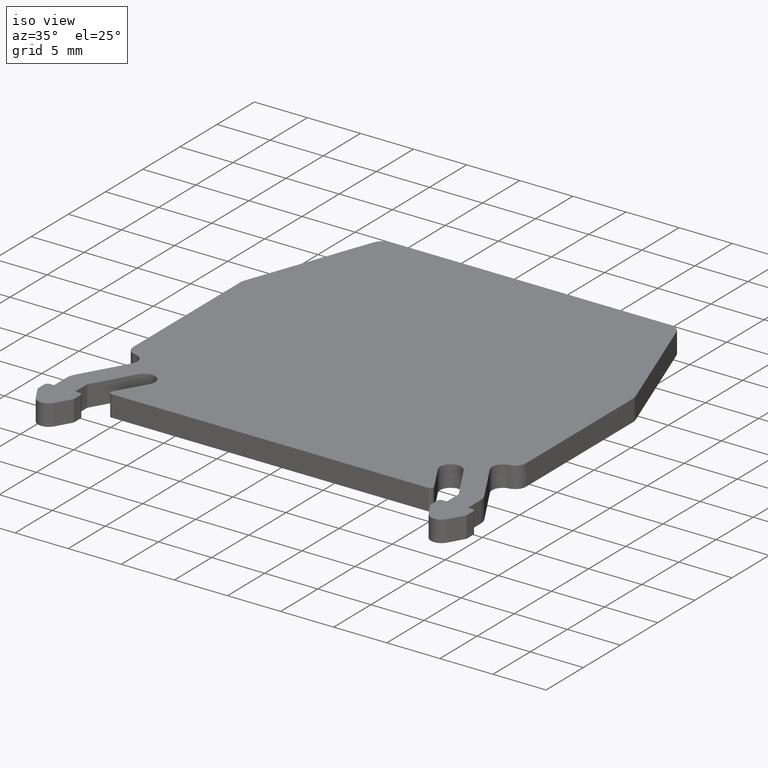
[diagram: clean part render]
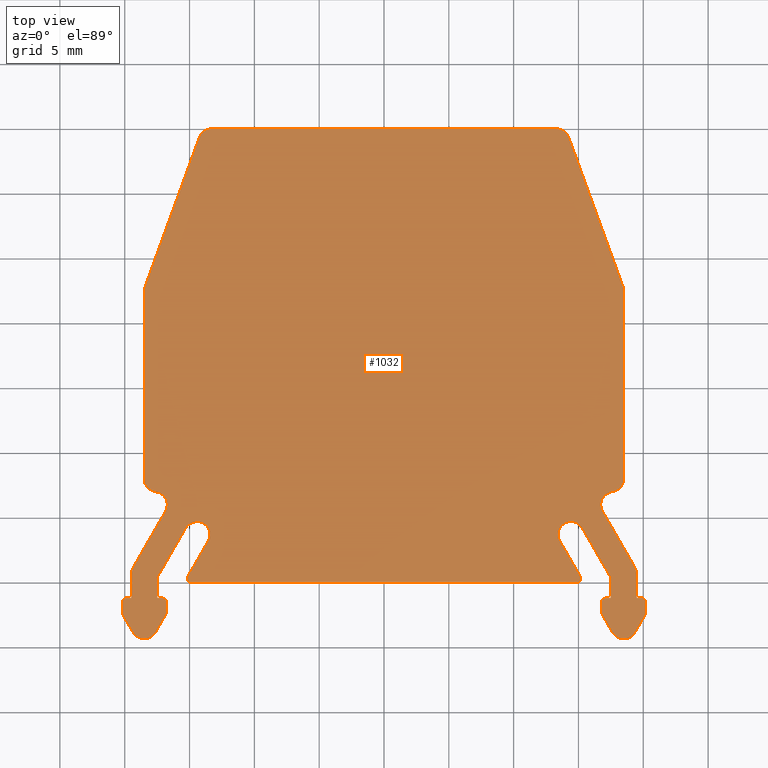
[diagram: tour spotlight — one face highlighted and labeled with its STEP entity id]
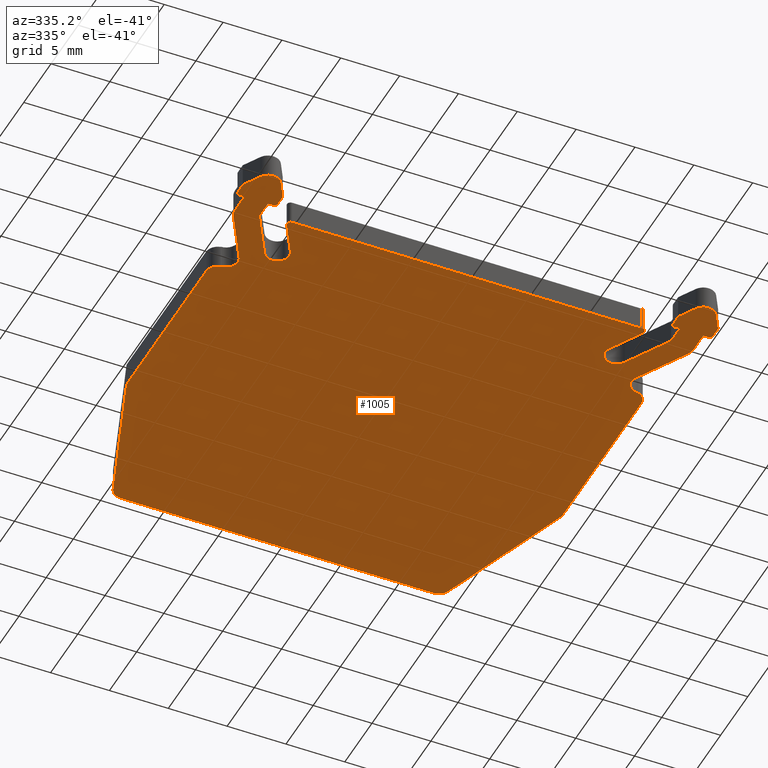
[diagram: tour spotlight — one face highlighted and labeled with its STEP entity id]
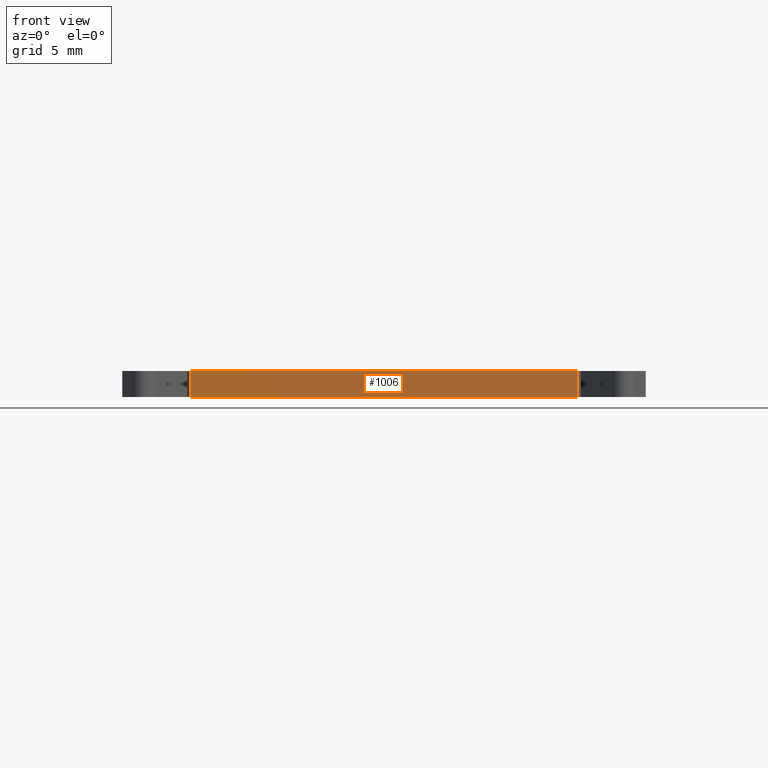
[diagram: tour spotlight — one face highlighted and labeled with its STEP entity id]
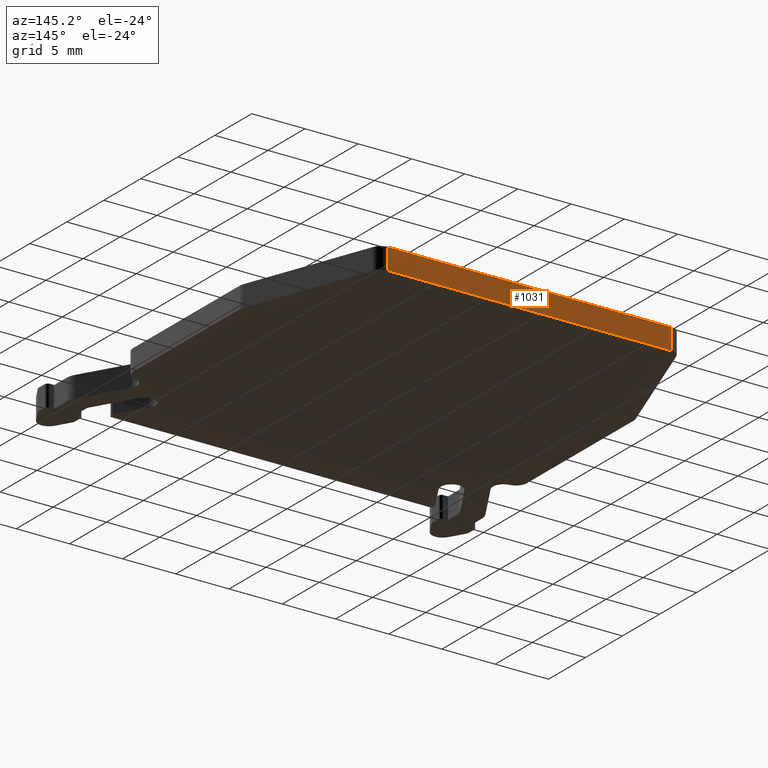
[diagram: tour spotlight — one face highlighted and labeled with its STEP entity id]
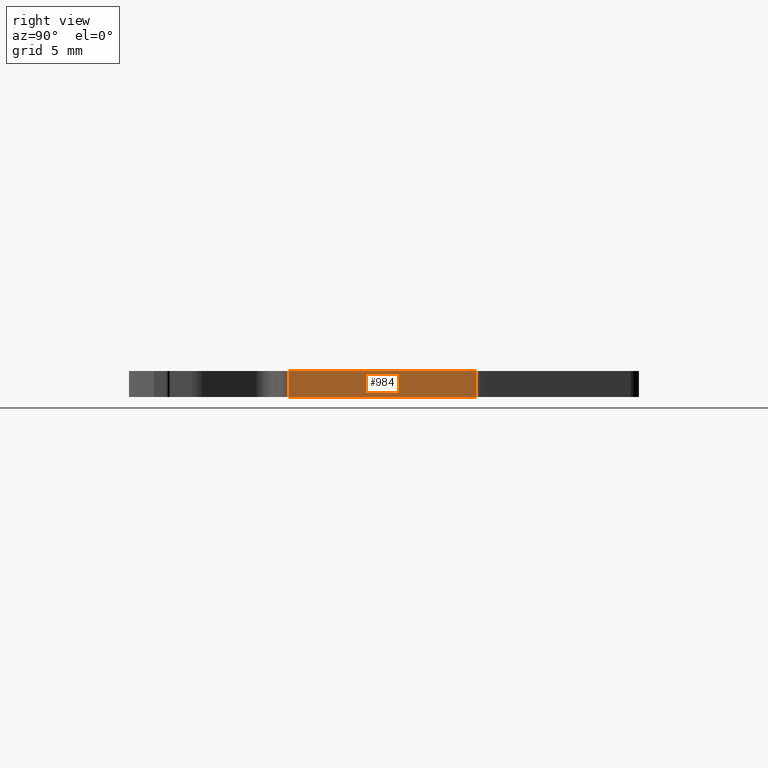
[diagram: tour spotlight — one face highlighted and labeled with its STEP entity id]
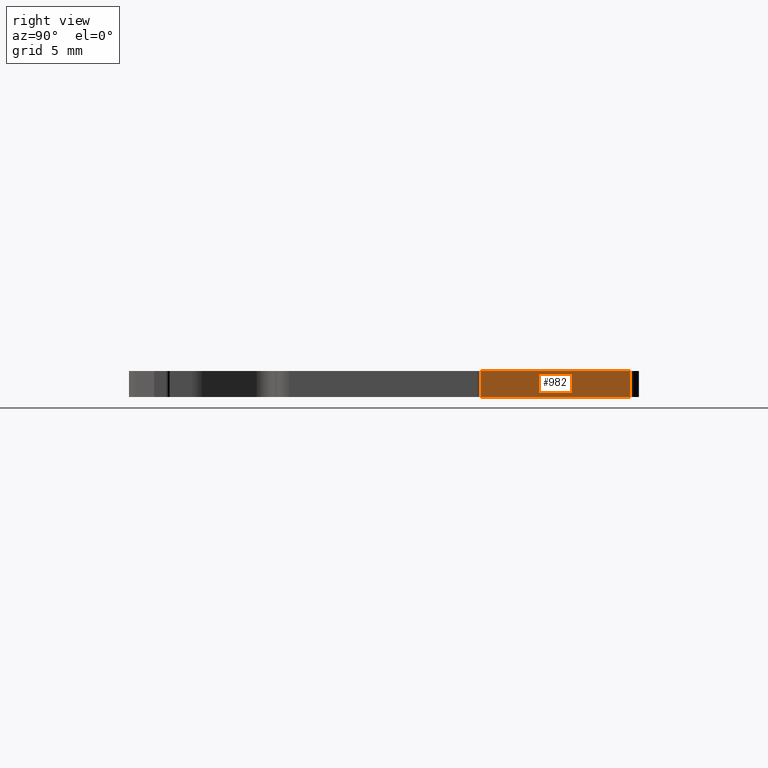
[diagram: tour spotlight — one face highlighted and labeled with its STEP entity id]
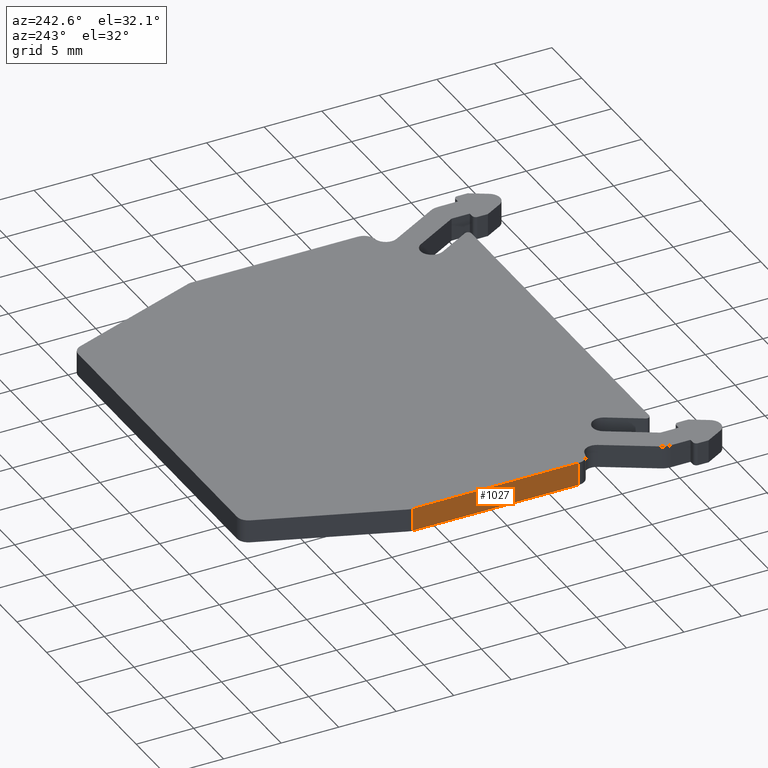
[diagram: tour spotlight — one face highlighted and labeled with its STEP entity id]
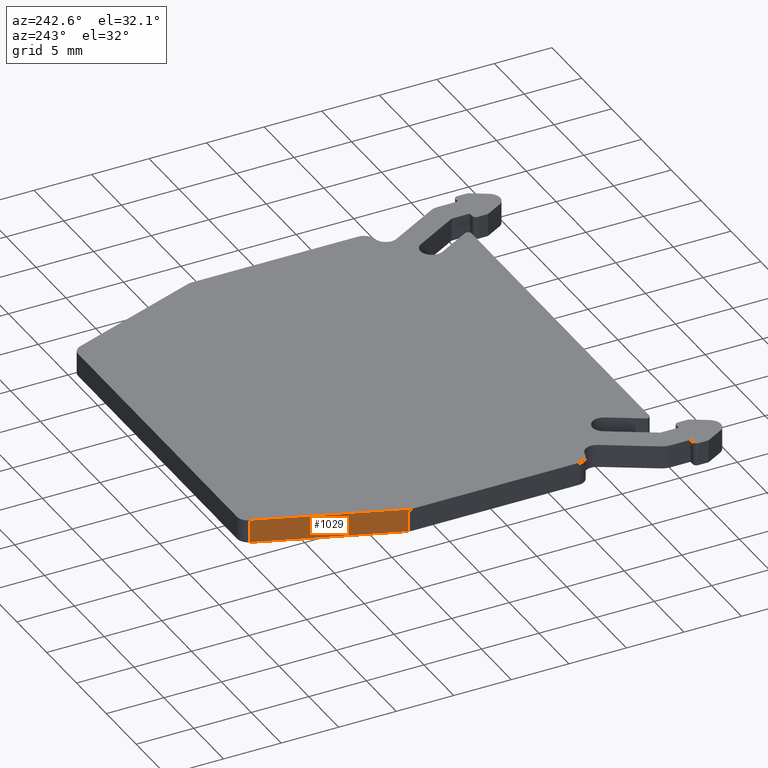
[diagram: tour spotlight — one face highlighted and labeled with its STEP entity id]
A machine part: a face-by-face anatomy tour. The part has 52 B-rep faces; the first image is the clean iso view, then the 8 largest visible faces are spotlighted one at a time (largest first), each with its STEP entity span.

Face 1 — top view, entity #1032. In plain terms, the highlighted planar face has unit normal (0, 0, 1).
Definition (entity closure, byte-faithful):
#46=PLANE('',#1126);
#98=FACE_OUTER_BOUND('',#150,.T.);
#150=EDGE_LOOP('',(#911,#912,#913,#914,#915,#916,#917,#918,#919,#920,#921,
#922,#923,#924,#925,#926,#927,#928,#929,#930,#931,#932,#933,#934,#935,#936,
#937,#938,#939,#940,#941,#942,#943,#944,#945,#946,#947,#948,#949,#950,#951,
#952,#953,#954,#955,#956,#957,#958,#959,#960));
#153=LINE('',#1435,#263);
#157=LINE('',#1447,#267);
#161=LINE('',#1459,#271);
#165=LINE('',#1471,#275);
#169=LINE('',#1483,#279);
#172=LINE('',#1489,#282);
#176=LINE('',#1501,#286);
#179=LINE('',#1507,#289);
#183=LINE('',#1519,#293);
#186=LINE('',#1525,#296);
#190=LINE('',#1537,#300);
#193=LINE('',#1543,#303);
#196=LINE('',#1549,#306);
#200=LINE('',#1561,#310);
#220=LINE('',#1625,#330);
#223=LINE('',#1633,#333);
#226=LINE('',#1641,#336);
#228=LINE('',#1645,#338);
#230=LINE('',#1649,#340);
#233=LINE('',#1657,#343);
#235=LINE('',#1661,#345);
#238=LINE('',#1669,#348);
#240=LINE('',#1673,#350);
#243=LINE('',#1681,#353);
#245=LINE('',#1685,#355);
#248=LINE('',#1693,#358);
#251=LINE('',#1701,#361);
#254=LINE('',#1709,#364);
#257=LINE('',#1717,#367);
#260=LINE('',#1724,#370);
#263=VECTOR('',#1139,12.2805852818158);
#267=VECTOR('',#1151,14.4600246317457);
#271=VECTOR('',#1163,0.21557713659401);
#275=VECTOR('',#1175,4.88897274573418);
#279=VECTOR('',#1187,1.71602540378444);
#282=VECTOR('',#1192,0.400000000000003);
#286=VECTOR('',#1204,0.905513627132916);
#289=VECTOR('',#1209,1.66794919243111);
#293=VECTOR('',#1221,1.66794919243111);
#296=VECTOR('',#1226,0.905513627132916);
#300=VECTOR('',#1238,0.400000000000003);
#303=VECTOR('',#1243,1.58205080756888);
#306=VECTOR('',#1248,4.40858798800484);
#310=VECTOR('',#1260,3.17542648054294);
#330=VECTOR('',#1310,29.7731216351297);
#333=VECTOR('',#1319,3.17542648054294);
#336=VECTOR('',#1328,4.40858798800484);
#338=VECTOR('',#1332,1.58205080756888);
#340=VECTOR('',#1336,0.400000000000003);
#343=VECTOR('',#1345,0.905513627132916);
#345=VECTOR('',#1349,1.66794919243111);
#348=VECTOR('',#1358,1.66794919243111);
#350=VECTOR('',#1362,0.905513627132916);
#353=VECTOR('',#1371,0.400000000000003);
#355=VECTOR('',#1375,1.71602540378444);
#358=VECTOR('',#1384,4.88897274573418);
#361=VECTOR('',#1393,0.21557713659401);
#364=VECTOR('',#1402,14.4600246317457);
#367=VECTOR('',#1411,12.2805852818158);
#370=VECTOR('',#1420,26.5995849235806);
#371=CIRCLE('',#1036,1.);
#373=CIRCLE('',#1040,1.);
#375=CIRCLE('',#1044,1.);
#377=CIRCLE('',#1048,1.);
#379=CIRCLE('',#1052,1.50000000000002);
#381=CIRCLE('',#1057,0.299999999999999);
#383=CIRCLE('',#1062,0.999999999999998);
#385=CIRCLE('',#1067,0.3);
#387=CIRCLE('',#1073,1.);
#389=CIRCLE('',#1077,0.300000000000002);
#401=CIRCLE('',#1092,0.300000000000002);
#402=CIRCLE('',#1095,1.);
#403=CIRCLE('',#1100,0.3);
#404=CIRCLE('',#1104,0.999999999999999);
#405=CIRCLE('',#1108,0.299999999999999);
#406=CIRCLE('',#1112,1.50000000000002);
#407=CIRCLE('',#1115,1.);
#408=CIRCLE('',#1118,1.);
#409=CIRCLE('',#1121,1.);
#410=CIRCLE('',#1124,1.);
#411=VERTEX_POINT('',#1425);
#412=VERTEX_POINT('',#1426);
#415=VERTEX_POINT('',#1434);
#417=VERTEX_POINT('',#1440);
#419=VERTEX_POINT('',#1446);
#421=VERTEX_POINT('',#1452);
#423=VERTEX_POINT('',#1458);
#425=VERTEX_POINT('',#1464);
#427=VERTEX_POINT('',#1470);
#429=VERTEX_POINT('',#1476);
#431=VERTEX_POINT('',#1482);
#433=VERTEX_POINT('',#1488);
#435=VERTEX_POINT('',#1494);
#437=VERTEX_POINT('',#1500);
#439=VERTEX_POINT('',#1506);
#441=VERTEX_POINT('',#1512);
#443=VERTEX_POINT('',#1518);
#445=VERTEX_POINT('',#1524);
#447=VERTEX_POINT('',#1530);
#449=VERTEX_POINT('',#1536);
#451=VERTEX_POINT('',#1542);
#453=VERTEX_POINT('',#1548);
#455=VERTEX_POINT('',#1554);
#457=VERTEX_POINT('',#1560);
#459=VERTEX_POINT('',#1566);
#486=VERTEX_POINT('',#1624);
#487=VERTEX_POINT('',#1628);
#488=VERTEX_POINT('',#1632);
#489=VERTEX_POINT('',#1636);
#490=VERTEX_POINT('',#1640);
#491=VERTEX_POINT('',#1644);
#492=VERTEX_POINT('',#1648);
#493=VERTEX_POINT('',#1652);
#494=VERTEX_POINT('',#1656);
#495=VERTEX_POINT('',#1660);
#496=VERTEX_POINT('',#1664);
#497=VERTEX_POINT('',#1668);
#498=VERTEX_POINT('',#1672);
#499=VERTEX_POINT('',#1676);
#500=VERTEX_POINT('',#1680);
#501=VERTEX_POINT('',#1684);
#502=VERTEX_POINT('',#1688);
#503=VERTEX_POINT('',#1692);
#504=VERTEX_POINT('',#1696);
#505=VERTEX_POINT('',#1700);
#506=VERTEX_POINT('',#1704);
#507=VERTEX_POINT('',#1708);
#508=VERTEX_POINT('',#1712);
#509=VERTEX_POINT('',#1716);
#510=VERTEX_POINT('',#1720);
#511=EDGE_CURVE('',#411,#412,#371,.T.);
#515=EDGE_CURVE('',#412,#415,#153,.T.);
#518=EDGE_CURVE('',#415,#417,#373,.T.);
#521=EDGE_CURVE('',#417,#419,#157,.T.);
#524=EDGE_CURVE('',#419,#421,#375,.T.);
#527=EDGE_CURVE('',#421,#423,#161,.T.);
#530=EDGE_CURVE('',#423,#425,#377,.T.);
#533=EDGE_CURVE('',#425,#427,#165,.T.);
#536=EDGE_CURVE('',#427,#429,#379,.T.);
#539=EDGE_CURVE('',#429,#431,#169,.T.);
#542=EDGE_CURVE('',#431,#433,#172,.T.);
#545=EDGE_CURVE('',#433,#435,#381,.T.);
#548=EDGE_CURVE('',#435,#437,#176,.T.);
#551=EDGE_CURVE('',#437,#439,#179,.T.);
#554=EDGE_CURVE('',#439,#441,#383,.T.);
#557=EDGE_CURVE('',#441,#443,#183,.T.);
#560=EDGE_CURVE('',#443,#445,#186,.T.);
#563=EDGE_CURVE('',#445,#447,#385,.T.);
#566=EDGE_CURVE('',#447,#449,#190,.T.);
#569=EDGE_CURVE('',#449,#451,#193,.T.);
#572=EDGE_CURVE('',#451,#453,#196,.T.);
#575=EDGE_CURVE('',#453,#455,#387,.T.);
#578=EDGE_CURVE('',#455,#457,#200,.T.);
#581=EDGE_CURVE('',#457,#459,#389,.T.);
#610=EDGE_CURVE('',#459,#486,#220,.T.);
#612=EDGE_CURVE('',#486,#487,#401,.T.);
#614=EDGE_CURVE('',#487,#488,#223,.T.);
#616=EDGE_CURVE('',#488,#489,#402,.T.);
#618=EDGE_CURVE('',#489,#490,#226,.T.);
#620=EDGE_CURVE('',#490,#491,#228,.T.);
#622=EDGE_CURVE('',#491,#492,#230,.T.);
#624=EDGE_CURVE('',#492,#493,#403,.T.);
#626=EDGE_CURVE('',#493,#494,#233,.T.);
#628=EDGE_CURVE('',#494,#495,#235,.T.);
#630=EDGE_CURVE('',#495,#496,#404,.T.);
#632=EDGE_CURVE('',#496,#497,#238,.T.);
#634=EDGE_CURVE('',#497,#498,#240,.T.);
#636=EDGE_CURVE('',#498,#499,#405,.T.);
#638=EDGE_CURVE('',#499,#500,#243,.T.);
#640=EDGE_CURVE('',#500,#501,#245,.T.);
#642=EDGE_CURVE('',#501,#502,#406,.T.);
#644=EDGE_CURVE('',#502,#503,#248,.T.);
#646=EDGE_CURVE('',#503,#504,#407,.T.);
#648=EDGE_CURVE('',#504,#505,#251,.T.);
#650=EDGE_CURVE('',#505,#506,#408,.T.);
#652=EDGE_CURVE('',#506,#507,#254,.T.);
#654=EDGE_CURVE('',#507,#508,#409,.T.);
#656=EDGE_CURVE('',#508,#509,#257,.T.);
#658=EDGE_CURVE('',#509,#510,#410,.T.);
#660=EDGE_CURVE('',#510,#411,#260,.T.);
#911=ORIENTED_EDGE('',*,*,#660,.F.);
#912=ORIENTED_EDGE('',*,*,#658,.F.);
#913=ORIENTED_EDGE('',*,*,#656,.F.);
#914=ORIENTED_EDGE('',*,*,#654,.F.);
#915=ORIENTED_EDGE('',*,*,#652,.F.);
#916=ORIENTED_EDGE('',*,*,#650,.F.);
#917=ORIENTED_EDGE('',*,*,#648,.F.);
#918=ORIENTED_EDGE('',*,*,#646,.F.);
#919=ORIENTED_EDGE('',*,*,#644,.F.);
#920=ORIENTED_EDGE('',*,*,#642,.F.);
#921=ORIENTED_EDGE('',*,*,#640,.F.);
#922=ORIENTED_EDGE('',*,*,#638,.F.);
#923=ORIENTED_EDGE('',*,*,#636,.F.);
#924=ORIENTED_EDGE('',*,*,#634,.F.);
#925=ORIENTED_EDGE('',*,*,#632,.F.);
#926=ORIENTED_EDGE('',*,*,#630,.F.);
#927=ORIENTED_EDGE('',*,*,#628,.F.);
#928=ORIENTED_EDGE('',*,*,#626,.F.);
#929=ORIENTED_EDGE('',*,*,#624,.F.);
#930=ORIENTED_EDGE('',*,*,#622,.F.);
#931=ORIENTED_EDGE('',*,*,#620,.F.);
#932=ORIENTED_EDGE('',*,*,#618,.F.);
#933=ORIENTED_EDGE('',*,*,#616,.F.);
#934=ORIENTED_EDGE('',*,*,#614,.F.);
#935=ORIENTED_EDGE('',*,*,#612,.F.);
#936=ORIENTED_EDGE('',*,*,#610,.F.);
#937=ORIENTED_EDGE('',*,*,#581,.F.);
#938=ORIENTED_EDGE('',*,*,#578,.F.);
#939=ORIENTED_EDGE('',*,*,#575,.F.);
#940=ORIENTED_EDGE('',*,*,#572,.F.);
#941=ORIENTED_EDGE('',*,*,#569,.F.);
#942=ORIENTED_EDGE('',*,*,#566,.F.);
#943=ORIENTED_EDGE('',*,*,#563,.F.);
#944=ORIENTED_EDGE('',*,*,#560,.F.);
#945=ORIENTED_EDGE('',*,*,#557,.F.);
#946=ORIENTED_EDGE('',*,*,#554,.F.);
#947=ORIENTED_EDGE('',*,*,#551,.F.);
#948=ORIENTED_EDGE('',*,*,#548,.F.);
#949=ORIENTED_EDGE('',*,*,#545,.F.);
#950=ORIENTED_EDGE('',*,*,#542,.F.);
#951=ORIENTED_EDGE('',*,*,#539,.F.);
#952=ORIENTED_EDGE('',*,*,#536,.F.);
#953=ORIENTED_EDGE('',*,*,#533,.F.);
#954=ORIENTED_EDGE('',*,*,#530,.F.);
#955=ORIENTED_EDGE('',*,*,#527,.F.);
#956=ORIENTED_EDGE('',*,*,#524,.F.);
#957=ORIENTED_EDGE('',*,*,#521,.F.);
#958=ORIENTED_EDGE('',*,*,#518,.F.);
#959=ORIENTED_EDGE('',*,*,#515,.F.);
#960=ORIENTED_EDGE('',*,*,#511,.F.);
#1032=ADVANCED_FACE('',(#98),#46,.T.);
#1036=AXIS2_PLACEMENT_3D('',#1427,#1131,#1132);
#1040=AXIS2_PLACEMENT_3D('',#1441,#1144,#1145);
#1044=AXIS2_PLACEMENT_3D('',#1453,#1156,#1157);
#1048=AXIS2_PLACEMENT_3D('',#1465,#1168,#1169);
#1052=AXIS2_PLACEMENT_3D('',#1477,#1180,#1181);
#1057=AXIS2_PLACEMENT_3D('',#1495,#1197,#1198);
#1062=AXIS2_PLACEMENT_3D('',#1513,#1214,#1215);
#1067=AXIS2_PLACEMENT_3D('',#1531,#1231,#1232);
#1073=AXIS2_PLACEMENT_3D('',#1555,#1253,#1254);
#1077=AXIS2_PLACEMENT_3D('',#1567,#1265,#1266);
#1092=AXIS2_PLACEMENT_3D('',#1629,#1314,#1315);
#1095=AXIS2_PLACEMENT_3D('',#1637,#1323,#1324);
#1100=AXIS2_PLACEMENT_3D('',#1653,#1340,#1341);
#1104=AXIS2_PLACEMENT_3D('',#1665,#1353,#1354);
#1108=AXIS2_PLACEMENT_3D('',#1677,#1366,#1367);
#1112=AXIS2_PLACEMENT_3D('',#1689,#1379,#1380);
#1115=AXIS2_PLACEMENT_3D('',#1697,#1388,#1389);
#1118=AXIS2_PLACEMENT_3D('',#1705,#1397,#1398);
#1121=AXIS2_PLACEMENT_3D('',#1713,#1406,#1407);
#1124=AXIS2_PLACEMENT_3D('',#1721,#1415,#1416);
#1126=AXIS2_PLACEMENT_3D('',#1725,#1421,#1422);
#1131=DIRECTION('center_axis',(0.,0.,-1.));
#1132=DIRECTION('ref_axis',(0.939692620785909,0.342020143325668,0.));
#1139=DIRECTION('',(0.342020143325668,-0.939692620785909,0.));
#1144=DIRECTION('center_axis',(0.,0.,-1.));
#1145=DIRECTION('ref_axis',(1.,0.,0.));
#1151=DIRECTION('',(0.,-1.,0.));
#1156=DIRECTION('center_axis',(0.,0.,-1.));
#1157=DIRECTION('ref_axis',(0.,-1.,0.));
#1163=DIRECTION('',(1.,5.15000357721612E-15,0.));
#1168=DIRECTION('center_axis',(0.,0.,1.));
#1169=DIRECTION('ref_axis',(0.,-1.,0.));
#1175=DIRECTION('',(0.499999999999999,-0.866025403784439,0.));
#1180=DIRECTION('center_axis',(0.,0.,-1.));
#1181=DIRECTION('ref_axis',(1.,-4.16333634234434E-16,0.));
#1187=DIRECTION('',(0.,-1.,0.));
#1192=DIRECTION('',(1.,-3.46944695195359E-16,0.));
#1197=DIRECTION('center_axis',(0.,0.,-1.));
#1198=DIRECTION('ref_axis',(1.,-9.25185853854283E-16,0.));
#1204=DIRECTION('',(-4.90427969876236E-15,-1.,0.));
#1209=DIRECTION('',(-0.500000000000004,-0.866025403784436,0.));
#1214=DIRECTION('center_axis',(0.,0.,-1.));
#1215=DIRECTION('ref_axis',(-0.866025403784442,-0.499999999999994,0.));
#1221=DIRECTION('',(-0.500000000000004,0.866025403784436,0.));
#1226=DIRECTION('',(-4.90427969876236E-15,1.,0.));
#1231=DIRECTION('center_axis',(0.,0.,-1.));
#1232=DIRECTION('ref_axis',(0.,1.,0.));
#1238=DIRECTION('',(1.,3.46944695195359E-16,0.));
#1243=DIRECTION('',(2.80704771127097E-15,1.,0.));
#1248=DIRECTION('',(-0.5,0.866025403784439,0.));
#1253=DIRECTION('center_axis',(0.,0.,1.));
#1254=DIRECTION('ref_axis',(-0.866025403784439,-0.5,0.));
#1260=DIRECTION('',(0.499999999999998,-0.86602540378444,0.));
#1265=DIRECTION('center_axis',(0.,0.,-1.));
#1266=DIRECTION('ref_axis',(0.,-1.,0.));
#1310=DIRECTION('',(-1.,-7.22482894663346E-17,0.));
#1314=DIRECTION('center_axis',(0.,0.,-1.));
#1315=DIRECTION('ref_axis',(-0.866025403784438,0.500000000000001,0.));
#1319=DIRECTION('',(0.499999999999998,0.86602540378444,0.));
#1323=DIRECTION('center_axis',(0.,0.,1.));
#1324=DIRECTION('ref_axis',(-0.866025403784439,0.5,0.));
#1328=DIRECTION('',(-0.5,-0.866025403784439,0.));
#1332=DIRECTION('',(2.80704771127097E-15,-1.,0.));
#1336=DIRECTION('',(1.,-3.46944695195359E-16,0.));
#1340=DIRECTION('center_axis',(0.,0.,-1.));
#1341=DIRECTION('ref_axis',(1.,-9.25185853854283E-16,0.));
#1345=DIRECTION('',(-4.90427969876236E-15,-1.,0.));
#1349=DIRECTION('',(-0.500000000000004,-0.866025403784436,0.));
#1353=DIRECTION('center_axis',(0.,0.,-1.));
#1354=DIRECTION('ref_axis',(-0.866025403784441,-0.499999999999996,0.));
#1358=DIRECTION('',(-0.500000000000004,0.866025403784436,0.));
#1362=DIRECTION('',(-4.90427969876236E-15,1.,0.));
#1366=DIRECTION('center_axis',(0.,0.,-1.));
#1367=DIRECTION('ref_axis',(0.,1.,0.));
#1371=DIRECTION('',(1.,3.46944695195359E-16,0.));
#1375=DIRECTION('',(0.,1.,0.));
#1379=DIRECTION('center_axis',(0.,0.,-1.));
#1380=DIRECTION('ref_axis',(-0.866025403784439,0.5,0.));
#1384=DIRECTION('',(0.499999999999999,0.866025403784439,0.));
#1388=DIRECTION('center_axis',(0.,0.,1.));
#1389=DIRECTION('ref_axis',(-0.866025403784439,0.5,0.));
#1393=DIRECTION('',(1.,-5.15000357721612E-15,0.));
#1397=DIRECTION('center_axis',(0.,0.,-1.));
#1398=DIRECTION('ref_axis',(-1.,0.,0.));
#1402=DIRECTION('',(0.,1.,0.));
#1406=DIRECTION('center_axis',(0.,0.,-1.));
#1407=DIRECTION('ref_axis',(-0.939692620785908,0.342020143325669,0.));
#1411=DIRECTION('',(0.342020143325668,0.939692620785909,0.));
#1415=DIRECTION('center_axis',(0.,0.,-1.));
#1416=DIRECTION('ref_axis',(-2.22044604925031E-15,1.,0.));
#1420=DIRECTION('',(1.,0.,0.));
#1421=DIRECTION('center_axis',(0.,0.,1.));
#1422=DIRECTION('ref_axis',(1.,0.,0.));
#1425=CARTESIAN_POINT('',(13.2997924617903,35.,1.));
#1426=CARTESIAN_POINT('',(14.2394850825762,34.3420201433257,1.));
#1427=CARTESIAN_POINT('Origin',(13.2997924617903,34.,1.));
#1434=CARTESIAN_POINT('',(18.4396926207859,22.8020447750714,1.));
#1435=CARTESIAN_POINT('',(18.4396926207859,22.8020447750714,1.));
#1440=CARTESIAN_POINT('',(18.5,22.4600246317457,1.));
#1441=CARTESIAN_POINT('Origin',(17.5,22.4600246317457,1.));
#1446=CARTESIAN_POINT('',(18.5,8.,1.));
#1447=CARTESIAN_POINT('',(18.5,8.,1.));
#1452=CARTESIAN_POINT('',(17.5,7.,1.));
#1453=CARTESIAN_POINT('Origin',(17.5,8.,1.));
#1458=CARTESIAN_POINT('',(17.715577136594,7.,1.));
#1459=CARTESIAN_POINT('',(17.715577136594,7.,1.));
#1464=CARTESIAN_POINT('',(16.8495517328096,5.5,1.));
#1465=CARTESIAN_POINT('Origin',(17.715577136594,6.,1.));
#1470=CARTESIAN_POINT('',(19.2940381056767,1.26602540378444,1.));
#1471=CARTESIAN_POINT('',(19.2940381056767,1.26602540378444,1.));
#1476=CARTESIAN_POINT('',(19.495,0.51602540378444,1.));
#1477=CARTESIAN_POINT('Origin',(17.995,0.51602540378444,1.));
#1482=CARTESIAN_POINT('',(19.495,-1.2,1.));
#1483=CARTESIAN_POINT('',(19.495,-1.2,1.));
#1488=CARTESIAN_POINT('',(19.895,-1.2,1.));
#1489=CARTESIAN_POINT('',(19.895,-1.2,1.));
#1494=CARTESIAN_POINT('',(20.195,-1.5,1.));
#1495=CARTESIAN_POINT('Origin',(19.895,-1.5,1.));
#1500=CARTESIAN_POINT('',(20.195,-2.40551362713292,1.));
#1501=CARTESIAN_POINT('',(20.195,-2.40551362713292,1.));
#1506=CARTESIAN_POINT('',(19.3610254037844,-3.85,1.));
#1507=CARTESIAN_POINT('',(19.3610254037844,-3.85,1.));
#1512=CARTESIAN_POINT('',(17.6289745962156,-3.85,1.));
#1513=CARTESIAN_POINT('Origin',(18.495,-3.35,1.));
#1518=CARTESIAN_POINT('',(16.795,-2.40551362713292,1.));
#1519=CARTESIAN_POINT('',(16.795,-2.40551362713292,1.));
#1524=CARTESIAN_POINT('',(16.795,-1.5,1.));
#1525=CARTESIAN_POINT('',(16.795,-1.5,1.));
#1530=CARTESIAN_POINT('',(17.095,-1.2,1.));
#1531=CARTESIAN_POINT('Origin',(17.095,-1.5,1.));
#1536=CARTESIAN_POINT('',(17.495,-1.2,1.));
#1537=CARTESIAN_POINT('',(17.495,-1.2,1.));
#1542=CARTESIAN_POINT('',(17.495,0.382050807568882,1.));
#1543=CARTESIAN_POINT('',(17.495,0.382050807568882,1.));
#1548=CARTESIAN_POINT('',(15.2907060059976,4.2,1.));
#1549=CARTESIAN_POINT('',(15.2907060059976,4.2,1.));
#1554=CARTESIAN_POINT('',(13.5586551984287,3.2,1.));
#1555=CARTESIAN_POINT('Origin',(14.4246806022131,3.7,1.));
#1560=CARTESIAN_POINT('',(15.1463684387002,0.449999999999999,1.));
#1561=CARTESIAN_POINT('',(15.1463684387002,0.449999999999999,1.));
#1566=CARTESIAN_POINT('',(14.8865608175648,-1.07552855510562E-15,1.));
#1567=CARTESIAN_POINT('Origin',(14.8865608175648,0.299999999999999,1.));
#1624=CARTESIAN_POINT('',(-14.8865608175648,-1.07552855510562E-15,1.));
#1625=CARTESIAN_POINT('',(-14.8865608175648,-1.07552855510562E-15,1.));
#1628=CARTESIAN_POINT('',(-15.1463684387002,0.449999999999999,1.));
#1629=CARTESIAN_POINT('Origin',(-14.8865608175648,0.299999999999999,1.));
#1632=CARTESIAN_POINT('',(-13.5586551984287,3.2,1.));
#1633=CARTESIAN_POINT('',(-13.5586551984287,3.2,1.));
#1636=CARTESIAN_POINT('',(-15.2907060059976,4.2,1.));
#1637=CARTESIAN_POINT('Origin',(-14.4246806022131,3.7,1.));
#1640=CARTESIAN_POINT('',(-17.495,0.382050807568882,1.));
#1641=CARTESIAN_POINT('',(-17.495,0.382050807568882,1.));
#1644=CARTESIAN_POINT('',(-17.495,-1.2,1.));
#1645=CARTESIAN_POINT('',(-17.495,-1.2,1.));
#1648=CARTESIAN_POINT('',(-17.095,-1.2,1.));
#1649=CARTESIAN_POINT('',(-17.095,-1.2,1.));
#1652=CARTESIAN_POINT('',(-16.795,-1.5,1.));
#1653=CARTESIAN_POINT('Origin',(-17.095,-1.5,1.));
#1656=CARTESIAN_POINT('',(-16.795,-2.40551362713292,1.));
#1657=CARTESIAN_POINT('',(-16.795,-2.40551362713292,1.));
#1660=CARTESIAN_POINT('',(-17.6289745962156,-3.85,1.));
#1661=CARTESIAN_POINT('',(-17.6289745962156,-3.85,1.));
#1664=CARTESIAN_POINT('',(-19.3610254037844,-3.85,1.));
#1665=CARTESIAN_POINT('Origin',(-18.495,-3.35,1.));
#1668=CARTESIAN_POINT('',(-20.195,-2.40551362713292,1.));
#1669=CARTESIAN_POINT('',(-20.195,-2.40551362713292,1.));
#1672=CARTESIAN_POINT('',(-20.195,-1.5,1.));
#1673=CARTESIAN_POINT('',(-20.195,-1.5,1.));
#1676=CARTESIAN_POINT('',(-19.895,-1.2,1.));
#1677=CARTESIAN_POINT('Origin',(-19.895,-1.5,1.));
#1680=CARTESIAN_POINT('',(-19.495,-1.2,1.));
#1681=CARTESIAN_POINT('',(-19.495,-1.2,1.));
#1684=CARTESIAN_POINT('',(-19.495,0.51602540378444,1.));
#1685=CARTESIAN_POINT('',(-19.495,0.51602540378444,1.));
#1688=CARTESIAN_POINT('',(-19.2940381056767,1.26602540378444,1.));
#1689=CARTESIAN_POINT('Origin',(-17.995,0.51602540378444,1.));
#1692=CARTESIAN_POINT('',(-16.8495517328096,5.5,1.));
#1693=CARTESIAN_POINT('',(-16.8495517328096,5.5,1.));
#1696=CARTESIAN_POINT('',(-17.715577136594,7.,1.));
#1697=CARTESIAN_POINT('Origin',(-17.715577136594,6.,1.));
#1700=CARTESIAN_POINT('',(-17.5,7.,1.));
#1701=CARTESIAN_POINT('',(-17.5,7.,1.));
#1704=CARTESIAN_POINT('',(-18.5,8.,1.));
#1705=CARTESIAN_POINT('Origin',(-17.5,8.,1.));
#1708=CARTESIAN_POINT('',(-18.5,22.4600246317457,1.));
#1709=CARTESIAN_POINT('',(-18.5,22.4600246317457,1.));
#1712=CARTESIAN_POINT('',(-18.4396926207859,22.8020447750714,1.));
#1713=CARTESIAN_POINT('Origin',(-17.5,22.4600246317457,1.));
#1716=CARTESIAN_POINT('',(-14.2394850825762,34.3420201433257,1.));
#1717=CARTESIAN_POINT('',(-14.2394850825762,34.3420201433257,1.));
#1720=CARTESIAN_POINT('',(-13.2997924617903,35.,1.));
#1721=CARTESIAN_POINT('Origin',(-13.2997924617903,34.,1.));
#1724=CARTESIAN_POINT('',(13.2997924617903,35.,1.));
#1725=CARTESIAN_POINT('Origin',(-10.1158311864765,14.0054414195829,1.));

Face 2 — auxiliary view, entity #1005. In plain terms, the highlighted planar face has unit normal (0, 0, 1).
Definition (entity closure, byte-faithful):
#29=PLANE('',#1079);
#71=FACE_OUTER_BOUND('',#123,.T.);
#123=EDGE_LOOP('',(#757,#758,#759,#760,#761,#762,#763,#764,#765,#766,#767,
#768,#769,#770,#771,#772,#773,#774,#775,#776,#777,#778,#779,#780,#781,#782,
#783,#784,#785,#786,#787,#788,#789,#790,#791,#792,#793,#794,#795,#796,#797,
#798,#799,#800,#801,#802,#803,#804,#805,#806));
#155=LINE('',#1438,#265);
#159=LINE('',#1450,#269);
#163=LINE('',#1462,#273);
#167=LINE('',#1474,#277);
#171=LINE('',#1486,#281);
#174=LINE('',#1492,#284);
#178=LINE('',#1504,#288);
#181=LINE('',#1510,#291);
#185=LINE('',#1522,#295);
#188=LINE('',#1528,#298);
#192=LINE('',#1540,#302);
#195=LINE('',#1546,#305);
#198=LINE('',#1552,#308);
#202=LINE('',#1564,#312);
#204=LINE('',#1575,#314);
#205=LINE('',#1577,#315);
#206=LINE('',#1581,#316);
#207=LINE('',#1585,#317);
#208=LINE('',#1587,#318);
#209=LINE('',#1589,#319);
#210=LINE('',#1593,#320);
#211=LINE('',#1595,#321);
#212=LINE('',#1599,#322);
#213=LINE('',#1601,#323);
#214=LINE('',#1605,#324);
#215=LINE('',#1607,#325);
#216=LINE('',#1611,#326);
#217=LINE('',#1615,#327);
#218=LINE('',#1619,#328);
#219=LINE('',#1622,#329);
#265=VECTOR('',#1141,12.2805852818158);
#269=VECTOR('',#1153,14.4600246317457);
#273=VECTOR('',#1165,0.21557713659401);
#277=VECTOR('',#1177,4.88897274573418);
#281=VECTOR('',#1189,1.71602540378444);
#284=VECTOR('',#1194,0.400000000000003);
#288=VECTOR('',#1206,0.905513627132916);
#291=VECTOR('',#1211,1.66794919243111);
#295=VECTOR('',#1223,1.66794919243111);
#298=VECTOR('',#1228,0.905513627132916);
#302=VECTOR('',#1240,0.400000000000003);
#305=VECTOR('',#1245,1.58205080756888);
#308=VECTOR('',#1250,4.40858798800484);
#312=VECTOR('',#1262,3.17542648054294);
#314=VECTOR('',#1274,26.5995849235806);
#315=VECTOR('',#1275,29.7731216351297);
#316=VECTOR('',#1278,3.17542648054294);
#317=VECTOR('',#1281,4.40858798800484);
#318=VECTOR('',#1282,1.58205080756888);
#319=VECTOR('',#1283,0.400000000000003);
#320=VECTOR('',#1286,0.905513627132916);
#321=VECTOR('',#1287,1.66794919243111);
#322=VECTOR('',#1290,1.66794919243111);
#323=VECTOR('',#1291,0.905513627132916);
#324=VECTOR('',#1294,0.400000000000003);
#325=VECTOR('',#1295,1.71602540378444);
#326=VECTOR('',#1298,4.88897274573418);
#327=VECTOR('',#1301,0.21557713659401);
#328=VECTOR('',#1304,14.4600246317457);
#329=VECTOR('',#1307,12.2805852818158);
#372=CIRCLE('',#1037,1.);
#374=CIRCLE('',#1041,1.);
#376=CIRCLE('',#1045,1.);
#378=CIRCLE('',#1049,1.);
#380=CIRCLE('',#1053,1.50000000000002);
#382=CIRCLE('',#1058,0.299999999999999);
#384=CIRCLE('',#1063,0.999999999999998);
#386=CIRCLE('',#1068,0.3);
#388=CIRCLE('',#1074,1.);
#390=CIRCLE('',#1078,0.300000000000002);
#391=CIRCLE('',#1080,1.);
#392=CIRCLE('',#1081,0.300000000000002);
#393=CIRCLE('',#1082,1.);
#394=CIRCLE('',#1083,0.3);
#395=CIRCLE('',#1084,0.999999999999999);
#396=CIRCLE('',#1085,0.299999999999999);
#397=CIRCLE('',#1086,1.50000000000002);
#398=CIRCLE('',#1087,1.);
#399=CIRCLE('',#1088,1.);
#400=CIRCLE('',#1089,1.);
#413=VERTEX_POINT('',#1428);
#414=VERTEX_POINT('',#1430);
#416=VERTEX_POINT('',#1436);
#418=VERTEX_POINT('',#1442);
#420=VERTEX_POINT('',#1448);
#422=VERTEX_POINT('',#1454);
#424=VERTEX_POINT('',#1460);
#426=VERTEX_POINT('',#1466);
#428=VERTEX_POINT('',#1472);
#430=VERTEX_POINT('',#1478);
#432=VERTEX_POINT('',#1484);
#434=VERTEX_POINT('',#1490);
#436=VERTEX_POINT('',#1496);
#438=VERTEX_POINT('',#1502);
#440=VERTEX_POINT('',#1508);
#442=VERTEX_POINT('',#1514);
#444=VERTEX_POINT('',#1520);
#446=VERTEX_POINT('',#1526);
#448=VERTEX_POINT('',#1532);
#450=VERTEX_POINT('',#1538);
#452=VERTEX_POINT('',#1544);
#454=VERTEX_POINT('',#1550);
#456=VERTEX_POINT('',#1556);
#458=VERTEX_POINT('',#1562);
#460=VERTEX_POINT('',#1568);
#461=VERTEX_POINT('',#1572);
#462=VERTEX_POINT('',#1573);
#463=VERTEX_POINT('',#1576);
#464=VERTEX_POINT('',#1578);
#465=VERTEX_POINT('',#1580);
#466=VERTEX_POINT('',#1582);
#467=VERTEX_POINT('',#1584);
#468=VERTEX_POINT('',#1586);
#469=VERTEX_POINT('',#1588);
#470=VERTEX_POINT('',#1590);
#471=VERTEX_POINT('',#1592);
#472=VERTEX_POINT('',#1594);
#473=VERTEX_POINT('',#1596);
#474=VERTEX_POINT('',#1598);
#475=VERTEX_POINT('',#1600);
#476=VERTEX_POINT('',#1602);
#477=VERTEX_POINT('',#1604);
#478=VERTEX_POINT('',#1606);
#479=VERTEX_POINT('',#1608);
#480=VERTEX_POINT('',#1610);
#481=VERTEX_POINT('',#1612);
#482=VERTEX_POINT('',#1614);
#483=VERTEX_POINT('',#1616);
#484=VERTEX_POINT('',#1618);
#485=VERTEX_POINT('',#1620);
#513=EDGE_CURVE('',#413,#414,#372,.T.);
#517=EDGE_CURVE('',#416,#413,#155,.T.);
#520=EDGE_CURVE('',#418,#416,#374,.T.);
#523=EDGE_CURVE('',#420,#418,#159,.T.);
#526=EDGE_CURVE('',#422,#420,#376,.T.);
#529=EDGE_CURVE('',#424,#422,#163,.T.);
#532=EDGE_CURVE('',#426,#424,#378,.T.);
#535=EDGE_CURVE('',#428,#426,#167,.T.);
#538=EDGE_CURVE('',#430,#428,#380,.T.);
#541=EDGE_CURVE('',#432,#430,#171,.T.);
#544=EDGE_CURVE('',#434,#432,#174,.T.);
#547=EDGE_CURVE('',#436,#434,#382,.T.);
#550=EDGE_CURVE('',#438,#436,#178,.T.);
#553=EDGE_CURVE('',#440,#438,#181,.T.);
#556=EDGE_CURVE('',#442,#440,#384,.T.);
#559=EDGE_CURVE('',#444,#442,#185,.T.);
#562=EDGE_CURVE('',#446,#444,#188,.T.);
#565=EDGE_CURVE('',#448,#446,#386,.T.);
#568=EDGE_CURVE('',#450,#448,#192,.T.);
#571=EDGE_CURVE('',#452,#450,#195,.T.);
#574=EDGE_CURVE('',#454,#452,#198,.T.);
#577=EDGE_CURVE('',#456,#454,#388,.T.);
#580=EDGE_CURVE('',#458,#456,#202,.T.);
#583=EDGE_CURVE('',#460,#458,#390,.T.);
#584=EDGE_CURVE('',#461,#462,#391,.T.);
#585=EDGE_CURVE('',#414,#461,#204,.T.);
#586=EDGE_CURVE('',#463,#460,#205,.T.);
#587=EDGE_CURVE('',#464,#463,#392,.T.);
#588=EDGE_CURVE('',#465,#464,#206,.T.);
#589=EDGE_CURVE('',#466,#465,#393,.T.);
#590=EDGE_CURVE('',#467,#466,#207,.T.);
#591=EDGE_CURVE('',#468,#467,#208,.T.);
#592=EDGE_CURVE('',#469,#468,#209,.T.);
#593=EDGE_CURVE('',#470,#469,#394,.T.);
#594=EDGE_CURVE('',#471,#470,#210,.T.);
#595=EDGE_CURVE('',#472,#471,#211,.T.);
#596=EDGE_CURVE('',#473,#472,#395,.T.);
#597=EDGE_CURVE('',#474,#473,#212,.T.);
#598=EDGE_CURVE('',#475,#474,#213,.T.);
#599=EDGE_CURVE('',#476,#475,#396,.T.);
#600=EDGE_CURVE('',#477,#476,#214,.T.);
#601=EDGE_CURVE('',#478,#477,#215,.T.);
#602=EDGE_CURVE('',#479,#478,#397,.T.);
#603=EDGE_CURVE('',#480,#479,#216,.T.);
#604=EDGE_CURVE('',#481,#480,#398,.T.);
#605=EDGE_CURVE('',#482,#481,#217,.T.);
#606=EDGE_CURVE('',#483,#482,#399,.T.);
#607=EDGE_CURVE('',#484,#483,#218,.T.);
#608=EDGE_CURVE('',#485,#484,#400,.T.);
#609=EDGE_CURVE('',#462,#485,#219,.T.);
#757=ORIENTED_EDGE('',*,*,#584,.F.);
#758=ORIENTED_EDGE('',*,*,#585,.F.);
#759=ORIENTED_EDGE('',*,*,#513,.F.);
#760=ORIENTED_EDGE('',*,*,#517,.F.);
#761=ORIENTED_EDGE('',*,*,#520,.F.);
#762=ORIENTED_EDGE('',*,*,#523,.F.);
#763=ORIENTED_EDGE('',*,*,#526,.F.);
#764=ORIENTED_EDGE('',*,*,#529,.F.);
#765=ORIENTED_EDGE('',*,*,#532,.F.);
#766=ORIENTED_EDGE('',*,*,#535,.F.);
#767=ORIENTED_EDGE('',*,*,#538,.F.);
#768=ORIENTED_EDGE('',*,*,#541,.F.);
#769=ORIENTED_EDGE('',*,*,#544,.F.);
#770=ORIENTED_EDGE('',*,*,#547,.F.);
#771=ORIENTED_EDGE('',*,*,#550,.F.);
#772=ORIENTED_EDGE('',*,*,#553,.F.);
#773=ORIENTED_EDGE('',*,*,#556,.F.);
#774=ORIENTED_EDGE('',*,*,#559,.F.);
#775=ORIENTED_EDGE('',*,*,#562,.F.);
#776=ORIENTED_EDGE('',*,*,#565,.F.);
#777=ORIENTED_EDGE('',*,*,#568,.F.);
#778=ORIENTED_EDGE('',*,*,#571,.F.);
#779=ORIENTED_EDGE('',*,*,#574,.F.);
#780=ORIENTED_EDGE('',*,*,#577,.F.);
#781=ORIENTED_EDGE('',*,*,#580,.F.);
#782=ORIENTED_EDGE('',*,*,#583,.F.);
#783=ORIENTED_EDGE('',*,*,#586,.F.);
#784=ORIENTED_EDGE('',*,*,#587,.F.);
#785=ORIENTED_EDGE('',*,*,#588,.F.);
#786=ORIENTED_EDGE('',*,*,#589,.F.);
#787=ORIENTED_EDGE('',*,*,#590,.F.);
#788=ORIENTED_EDGE('',*,*,#591,.F.);
#789=ORIENTED_EDGE('',*,*,#592,.F.);
#790=ORIENTED_EDGE('',*,*,#593,.F.);
#791=ORIENTED_EDGE('',*,*,#594,.F.);
#792=ORIENTED_EDGE('',*,*,#595,.F.);
#793=ORIENTED_EDGE('',*,*,#596,.F.);
#794=ORIENTED_EDGE('',*,*,#597,.F.);
#795=ORIENTED_EDGE('',*,*,#598,.F.);
#796=ORIENTED_EDGE('',*,*,#599,.F.);
#797=ORIENTED_EDGE('',*,*,#600,.F.);
#798=ORIENTED_EDGE('',*,*,#601,.F.);
#799=ORIENTED_EDGE('',*,*,#602,.F.);
#800=ORIENTED_EDGE('',*,*,#603,.F.);
#801=ORIENTED_EDGE('',*,*,#604,.F.);
#802=ORIENTED_EDGE('',*,*,#605,.F.);
#803=ORIENTED_EDGE('',*,*,#606,.F.);
#804=ORIENTED_EDGE('',*,*,#607,.F.);
#805=ORIENTED_EDGE('',*,*,#608,.F.);
#806=ORIENTED_EDGE('',*,*,#609,.F.);
#1005=ADVANCED_FACE('',(#71),#29,.F.);
#1037=AXIS2_PLACEMENT_3D('',#1431,#1134,#1135);
#1041=AXIS2_PLACEMENT_3D('',#1444,#1147,#1148);
#1045=AXIS2_PLACEMENT_3D('',#1456,#1159,#1160);
#1049=AXIS2_PLACEMENT_3D('',#1468,#1171,#1172);
#1053=AXIS2_PLACEMENT_3D('',#1480,#1183,#1184);
#1058=AXIS2_PLACEMENT_3D('',#1498,#1200,#1201);
#1063=AXIS2_PLACEMENT_3D('',#1516,#1217,#1218);
#1068=AXIS2_PLACEMENT_3D('',#1534,#1234,#1235);
#1074=AXIS2_PLACEMENT_3D('',#1558,#1256,#1257);
#1078=AXIS2_PLACEMENT_3D('',#1570,#1268,#1269);
#1079=AXIS2_PLACEMENT_3D('',#1571,#1270,#1271);
#1080=AXIS2_PLACEMENT_3D('',#1574,#1272,#1273);
#1081=AXIS2_PLACEMENT_3D('',#1579,#1276,#1277);
#1082=AXIS2_PLACEMENT_3D('',#1583,#1279,#1280);
#1083=AXIS2_PLACEMENT_3D('',#1591,#1284,#1285);
#1084=AXIS2_PLACEMENT_3D('',#1597,#1288,#1289);
#1085=AXIS2_PLACEMENT_3D('',#1603,#1292,#1293);
#1086=AXIS2_PLACEMENT_3D('',#1609,#1296,#1297);
#1087=AXIS2_PLACEMENT_3D('',#1613,#1299,#1300);
#1088=AXIS2_PLACEMENT_3D('',#1617,#1302,#1303);
#1089=AXIS2_PLACEMENT_3D('',#1621,#1305,#1306);
#1134=DIRECTION('center_axis',(0.,0.,1.));
#1135=DIRECTION('ref_axis',(0.939692620785909,0.342020143325668,0.));
#1141=DIRECTION('',(-0.342020143325668,0.939692620785909,0.));
#1147=DIRECTION('center_axis',(0.,0.,1.));
#1148=DIRECTION('ref_axis',(1.,0.,0.));
#1153=DIRECTION('',(0.,1.,0.));
#1159=DIRECTION('center_axis',(0.,0.,1.));
#1160=DIRECTION('ref_axis',(0.,-1.,0.));
#1165=DIRECTION('',(-1.,-5.15000357721612E-15,0.));
#1171=DIRECTION('center_axis',(0.,0.,-1.));
#1172=DIRECTION('ref_axis',(0.,-1.,0.));
#1177=DIRECTION('',(-0.499999999999999,0.866025403784439,0.));
#1183=DIRECTION('center_axis',(0.,0.,1.));
#1184=DIRECTION('ref_axis',(1.,-4.16333634234434E-16,0.));
#1189=DIRECTION('',(0.,1.,0.));
#1194=DIRECTION('',(-1.,3.46944695195359E-16,0.));
#1200=DIRECTION('center_axis',(0.,0.,1.));
#1201=DIRECTION('ref_axis',(1.,-9.25185853854283E-16,0.));
#1206=DIRECTION('',(4.90427969876236E-15,1.,0.));
#1211=DIRECTION('',(0.500000000000004,0.866025403784436,0.));
#1217=DIRECTION('center_axis',(0.,0.,1.));
#1218=DIRECTION('ref_axis',(-0.866025403784442,-0.499999999999994,0.));
#1223=DIRECTION('',(0.500000000000004,-0.866025403784436,0.));
#1228=DIRECTION('',(4.90427969876236E-15,-1.,0.));
#1234=DIRECTION('center_axis',(0.,0.,1.));
#1235=DIRECTION('ref_axis',(0.,1.,0.));
#1240=DIRECTION('',(-1.,-3.46944695195359E-16,0.));
#1245=DIRECTION('',(-2.80704771127097E-15,-1.,0.));
#1250=DIRECTION('',(0.5,-0.866025403784439,0.));
#1256=DIRECTION('center_axis',(0.,0.,-1.));
#1257=DIRECTION('ref_axis',(-0.866025403784439,-0.5,0.));
#1262=DIRECTION('',(-0.499999999999998,0.86602540378444,0.));
#1268=DIRECTION('center_axis',(0.,0.,1.));
#1269=DIRECTION('ref_axis',(0.,-1.,0.));
#1270=DIRECTION('center_axis',(0.,0.,1.));
#1271=DIRECTION('ref_axis',(1.,0.,0.));
#1272=DIRECTION('center_axis',(0.,0.,1.));
#1273=DIRECTION('ref_axis',(-2.22044604925031E-15,1.,0.));
#1274=DIRECTION('',(-1.,0.,0.));
#1275=DIRECTION('',(1.,-7.22482894663346E-17,0.));
#1276=DIRECTION('center_axis',(0.,0.,1.));
#1277=DIRECTION('ref_axis',(-0.866025403784438,0.500000000000001,0.));
#1278=DIRECTION('',(-0.499999999999998,-0.86602540378444,0.));
#1279=DIRECTION('center_axis',(0.,0.,-1.));
#1280=DIRECTION('ref_axis',(-0.866025403784439,0.5,0.));
#1281=DIRECTION('',(0.5,0.866025403784439,0.));
#1282=DIRECTION('',(-2.80704771127097E-15,1.,0.));
#1283=DIRECTION('',(-1.,3.46944695195359E-16,0.));
#1284=DIRECTION('center_axis',(0.,0.,1.));
#1285=DIRECTION('ref_axis',(1.,-9.25185853854283E-16,0.));
#1286=DIRECTION('',(4.90427969876236E-15,1.,0.));
#1287=DIRECTION('',(0.500000000000004,0.866025403784436,0.));
#1288=DIRECTION('center_axis',(0.,0.,1.));
#1289=DIRECTION('ref_axis',(-0.866025403784441,-0.499999999999996,0.));
#1290=DIRECTION('',(0.500000000000004,-0.866025403784436,0.));
#1291=DIRECTION('',(4.90427969876236E-15,-1.,0.));
#1292=DIRECTION('center_axis',(0.,0.,1.));
#1293=DIRECTION('ref_axis',(0.,1.,0.));
#1294=DIRECTION('',(-1.,-3.46944695195359E-16,0.));
#1295=DIRECTION('',(0.,-1.,0.));
#1296=DIRECTION('center_axis',(0.,0.,1.));
#1297=DIRECTION('ref_axis',(-0.866025403784439,0.5,0.));
#1298=DIRECTION('',(-0.499999999999999,-0.866025403784439,0.));
#1299=DIRECTION('center_axis',(0.,0.,-1.));
#1300=DIRECTION('ref_axis',(-0.866025403784439,0.5,0.));
#1301=DIRECTION('',(-1.,5.15000357721612E-15,0.));
#1302=DIRECTION('center_axis',(0.,0.,1.));
#1303=DIRECTION('ref_axis',(-1.,0.,0.));
#1304=DIRECTION('',(0.,-1.,0.));
#1305=DIRECTION('center_axis',(0.,0.,1.));
#1306=DIRECTION('ref_axis',(-0.939692620785908,0.342020143325669,0.));
#1307=DIRECTION('',(-0.342020143325668,-0.939692620785909,0.));
#1428=CARTESIAN_POINT('',(14.2394850825762,34.3420201433257,-1.));
#1430=CARTESIAN_POINT('',(13.2997924617903,35.,-1.));
#1431=CARTESIAN_POINT('Origin',(13.2997924617903,34.,-1.));
#1436=CARTESIAN_POINT('',(18.4396926207859,22.8020447750714,-1.));
#1438=CARTESIAN_POINT('',(18.4396926207859,22.8020447750714,-1.));
#1442=CARTESIAN_POINT('',(18.5,22.4600246317457,-1.));
#1444=CARTESIAN_POINT('Origin',(17.5,22.4600246317457,-1.));
#1448=CARTESIAN_POINT('',(18.5,8.,-1.));
#1450=CARTESIAN_POINT('',(18.5,8.,-1.));
#1454=CARTESIAN_POINT('',(17.5,7.,-1.));
#1456=CARTESIAN_POINT('Origin',(17.5,8.,-1.));
#1460=CARTESIAN_POINT('',(17.715577136594,7.,-1.));
#1462=CARTESIAN_POINT('',(17.715577136594,7.,-1.));
#1466=CARTESIAN_POINT('',(16.8495517328096,5.5,-1.));
#1468=CARTESIAN_POINT('Origin',(17.715577136594,6.,-1.));
#1472=CARTESIAN_POINT('',(19.2940381056767,1.26602540378444,-1.));
#1474=CARTESIAN_POINT('',(19.2940381056767,1.26602540378444,-1.));
#1478=CARTESIAN_POINT('',(19.495,0.51602540378444,-1.));
#1480=CARTESIAN_POINT('Origin',(17.995,0.51602540378444,-1.));
#1484=CARTESIAN_POINT('',(19.495,-1.2,-1.));
#1486=CARTESIAN_POINT('',(19.495,-1.2,-1.));
#1490=CARTESIAN_POINT('',(19.895,-1.2,-1.));
#1492=CARTESIAN_POINT('',(19.895,-1.2,-1.));
#1496=CARTESIAN_POINT('',(20.195,-1.5,-1.));
#1498=CARTESIAN_POINT('Origin',(19.895,-1.5,-1.));
#1502=CARTESIAN_POINT('',(20.195,-2.40551362713292,-1.));
#1504=CARTESIAN_POINT('',(20.195,-2.40551362713292,-1.));
#1508=CARTESIAN_POINT('',(19.3610254037844,-3.85,-1.));
#1510=CARTESIAN_POINT('',(19.3610254037844,-3.85,-1.));
#1514=CARTESIAN_POINT('',(17.6289745962156,-3.85,-1.));
#1516=CARTESIAN_POINT('Origin',(18.495,-3.35,-1.));
#1520=CARTESIAN_POINT('',(16.795,-2.40551362713292,-1.));
#1522=CARTESIAN_POINT('',(16.795,-2.40551362713292,-1.));
#1526=CARTESIAN_POINT('',(16.795,-1.5,-1.));
#1528=CARTESIAN_POINT('',(16.795,-1.5,-1.));
#1532=CARTESIAN_POINT('',(17.095,-1.2,-1.));
#1534=CARTESIAN_POINT('Origin',(17.095,-1.5,-1.));
#1538=CARTESIAN_POINT('',(17.495,-1.2,-1.));
#1540=CARTESIAN_POINT('',(17.495,-1.2,-1.));
#1544=CARTESIAN_POINT('',(17.495,0.382050807568882,-1.));
#1546=CARTESIAN_POINT('',(17.495,0.382050807568882,-1.));
#1550=CARTESIAN_POINT('',(15.2907060059976,4.2,-1.));
#1552=CARTESIAN_POINT('',(15.2907060059976,4.2,-1.));
#1556=CARTESIAN_POINT('',(13.5586551984287,3.2,-1.));
#1558=CARTESIAN_POINT('Origin',(14.4246806022131,3.7,-1.));
#1562=CARTESIAN_POINT('',(15.1463684387002,0.449999999999999,-1.));
#1564=CARTESIAN_POINT('',(15.1463684387002,0.449999999999999,-1.));
#1568=CARTESIAN_POINT('',(14.8865608175648,-1.07552855510562E-15,-1.));
#1570=CARTESIAN_POINT('Origin',(14.8865608175648,0.299999999999999,-1.));
#1571=CARTESIAN_POINT('Origin',(-10.1158311864765,14.0054414195829,-1.));
#1572=CARTESIAN_POINT('',(-13.2997924617903,35.,-1.));
#1573=CARTESIAN_POINT('',(-14.2394850825762,34.3420201433257,-1.));
#1574=CARTESIAN_POINT('Origin',(-13.2997924617903,34.,-1.));
#1575=CARTESIAN_POINT('',(0.,35.,-1.));
#1576=CARTESIAN_POINT('',(-14.8865608175648,-1.07552855510562E-15,-1.));
#1577=CARTESIAN_POINT('',(0.,0.,-1.));
#1578=CARTESIAN_POINT('',(-15.1463684387002,0.449999999999999,-1.));
#1579=CARTESIAN_POINT('Origin',(-14.8865608175648,0.299999999999999,-1.));
#1580=CARTESIAN_POINT('',(-13.5586551984287,3.2,-1.));
#1581=CARTESIAN_POINT('',(-13.5586551984287,3.2,-1.));
#1582=CARTESIAN_POINT('',(-15.2907060059976,4.2,-1.));
#1583=CARTESIAN_POINT('Origin',(-14.4246806022131,3.7,-1.));
#1584=CARTESIAN_POINT('',(-17.495,0.382050807568882,-1.));
#1585=CARTESIAN_POINT('',(-17.495,0.382050807568882,-1.));
#1586=CARTESIAN_POINT('',(-17.495,-1.2,-1.));
#1587=CARTESIAN_POINT('',(-17.495,-1.2,-1.));
#1588=CARTESIAN_POINT('',(-17.095,-1.2,-1.));
#1589=CARTESIAN_POINT('',(-17.095,-1.2,-1.));
#1590=CARTESIAN_POINT('',(-16.795,-1.5,-1.));
#1591=CARTESIAN_POINT('Origin',(-17.095,-1.5,-1.));
#1592=CARTESIAN_POINT('',(-16.795,-2.40551362713292,-1.));
#1593=CARTESIAN_POINT('',(-16.795,-2.40551362713292,-1.));
#1594=CARTESIAN_POINT('',(-17.6289745962156,-3.85,-1.));
#1595=CARTESIAN_POINT('',(-17.6289745962156,-3.85,-1.));
#1596=CARTESIAN_POINT('',(-19.3610254037844,-3.85,-1.));
#1597=CARTESIAN_POINT('Origin',(-18.495,-3.35,-1.));
#1598=CARTESIAN_POINT('',(-20.195,-2.40551362713292,-1.));
#1599=CARTESIAN_POINT('',(-20.195,-2.40551362713292,-1.));
#1600=CARTESIAN_POINT('',(-20.195,-1.5,-1.));
#1601=CARTESIAN_POINT('',(-20.195,-1.5,-1.));
#1602=CARTESIAN_POINT('',(-19.895,-1.2,-1.));
#1603=CARTESIAN_POINT('Origin',(-19.895,-1.5,-1.));
#1604=CARTESIAN_POINT('',(-19.495,-1.2,-1.));
#1605=CARTESIAN_POINT('',(-19.495,-1.2,-1.));
#1606=CARTESIAN_POINT('',(-19.495,0.51602540378444,-1.));
#1607=CARTESIAN_POINT('',(-19.495,0.51602540378444,-1.));
#1608=CARTESIAN_POINT('',(-19.2940381056767,1.26602540378444,-1.));
#1609=CARTESIAN_POINT('Origin',(-17.995,0.51602540378444,-1.));
#1610=CARTESIAN_POINT('',(-16.8495517328096,5.5,-1.));
#1611=CARTESIAN_POINT('',(-16.8495517328096,5.5,-1.));
#1612=CARTESIAN_POINT('',(-17.715577136594,7.,-1.));
#1613=CARTESIAN_POINT('Origin',(-17.715577136594,6.,-1.));
#1614=CARTESIAN_POINT('',(-17.5,7.,-1.));
#1615=CARTESIAN_POINT('',(-17.5,7.,-1.));
#1616=CARTESIAN_POINT('',(-18.5,8.,-1.));
#1617=CARTESIAN_POINT('Origin',(-17.5,8.,-1.));
#1618=CARTESIAN_POINT('',(-18.5,22.4600246317457,-1.));
#1619=CARTESIAN_POINT('',(-18.5,22.4600246317457,-1.));
#1620=CARTESIAN_POINT('',(-18.4396926207859,22.8020447750714,-1.));
#1621=CARTESIAN_POINT('Origin',(-17.5,22.4600246317457,-1.));
#1622=CARTESIAN_POINT('',(-14.2394850825762,34.3420201433257,-1.));

Face 3 — front view, entity #1006. In plain terms, the highlighted planar face has unit normal (0, -1, 0).
Definition (entity closure, byte-faithful):
#30=PLANE('',#1090);
#72=FACE_OUTER_BOUND('',#124,.T.);
#124=EDGE_LOOP('',(#807,#808,#809,#810));
#203=LINE('',#1569,#313);
#205=LINE('',#1577,#315);
#220=LINE('',#1625,#330);
#221=LINE('',#1626,#331);
#313=VECTOR('',#1267,2.);
#315=VECTOR('',#1275,29.7731216351297);
#330=VECTOR('',#1310,29.7731216351297);
#331=VECTOR('',#1311,2.);
#459=VERTEX_POINT('',#1566);
#460=VERTEX_POINT('',#1568);
#463=VERTEX_POINT('',#1576);
#486=VERTEX_POINT('',#1624);
#582=EDGE_CURVE('',#460,#459,#203,.T.);
#586=EDGE_CURVE('',#463,#460,#205,.T.);
#610=EDGE_CURVE('',#459,#486,#220,.T.);
#611=EDGE_CURVE('',#463,#486,#221,.T.);
#807=ORIENTED_EDGE('',*,*,#610,.T.);
#808=ORIENTED_EDGE('',*,*,#611,.F.);
#809=ORIENTED_EDGE('',*,*,#586,.T.);
#810=ORIENTED_EDGE('',*,*,#582,.T.);
#1006=ADVANCED_FACE('',(#72),#30,.T.);
#1090=AXIS2_PLACEMENT_3D('',#1623,#1308,#1309);
#1267=DIRECTION('',(0.,0.,1.));
#1275=DIRECTION('',(1.,-7.22482894663346E-17,0.));
#1308=DIRECTION('center_axis',(7.22482894663346E-17,-1.,0.));
#1309=DIRECTION('ref_axis',(0.,0.,-1.));
#1310=DIRECTION('',(-1.,-7.22482894663346E-17,0.));
#1311=DIRECTION('',(0.,0.,1.));
#1566=CARTESIAN_POINT('',(14.8865608175648,-1.07552855510562E-15,1.));
#1568=CARTESIAN_POINT('',(14.8865608175648,-1.07552855510562E-15,-1.));
#1569=CARTESIAN_POINT('',(14.8865608175648,-1.07552855510562E-15,0.));
#1576=CARTESIAN_POINT('',(-14.8865608175648,-1.07552855510562E-15,-1.));
#1577=CARTESIAN_POINT('',(0.,0.,-1.));
#1623=CARTESIAN_POINT('Origin',(0.,0.,0.));
#1624=CARTESIAN_POINT('',(-14.8865608175648,-1.07552855510562E-15,1.));
#1625=CARTESIAN_POINT('',(-14.8865608175648,-1.07552855510562E-15,1.));
#1626=CARTESIAN_POINT('',(-14.8865608175648,-1.07552855510562E-15,0.));

Face 4 — auxiliary view, entity #1031. In plain terms, the highlighted planar face has unit normal (0, 1, 0).
Definition (entity closure, byte-faithful):
#45=PLANE('',#1125);
#97=FACE_OUTER_BOUND('',#149,.T.);
#149=EDGE_LOOP('',(#907,#908,#909,#910));
#152=LINE('',#1432,#262);
#204=LINE('',#1575,#314);
#259=LINE('',#1722,#369);
#260=LINE('',#1724,#370);
#262=VECTOR('',#1136,2.);
#314=VECTOR('',#1274,26.5995849235806);
#369=VECTOR('',#1417,2.);
#370=VECTOR('',#1420,26.5995849235806);
#411=VERTEX_POINT('',#1425);
#414=VERTEX_POINT('',#1430);
#461=VERTEX_POINT('',#1572);
#510=VERTEX_POINT('',#1720);
#514=EDGE_CURVE('',#414,#411,#152,.T.);
#585=EDGE_CURVE('',#414,#461,#204,.T.);
#659=EDGE_CURVE('',#461,#510,#259,.T.);
#660=EDGE_CURVE('',#510,#411,#260,.T.);
#907=ORIENTED_EDGE('',*,*,#660,.T.);
#908=ORIENTED_EDGE('',*,*,#514,.F.);
#909=ORIENTED_EDGE('',*,*,#585,.T.);
#910=ORIENTED_EDGE('',*,*,#659,.T.);
#1031=ADVANCED_FACE('',(#97),#45,.T.);
#1125=AXIS2_PLACEMENT_3D('',#1723,#1418,#1419);
#1136=DIRECTION('',(0.,0.,1.));
#1274=DIRECTION('',(-1.,0.,0.));
#1417=DIRECTION('',(0.,0.,1.));
#1418=DIRECTION('center_axis',(0.,1.,0.));
#1419=DIRECTION('ref_axis',(0.,0.,1.));
#1420=DIRECTION('',(1.,0.,0.));
#1425=CARTESIAN_POINT('',(13.2997924617903,35.,1.));
#1430=CARTESIAN_POINT('',(13.2997924617903,35.,-1.));
#1432=CARTESIAN_POINT('',(13.2997924617903,35.,0.));
#1572=CARTESIAN_POINT('',(-13.2997924617903,35.,-1.));
#1575=CARTESIAN_POINT('',(0.,35.,-1.));
#1720=CARTESIAN_POINT('',(-13.2997924617903,35.,1.));
#1722=CARTESIAN_POINT('',(-13.2997924617903,35.,0.));
#1723=CARTESIAN_POINT('Origin',(-13.2997924617903,35.,0.));
#1724=CARTESIAN_POINT('',(13.2997924617903,35.,1.));

Face 5 — right view, entity #984. In plain terms, the highlighted planar face has unit normal (1, 0, 0).
Definition (entity closure, byte-faithful):
#16=PLANE('',#1042);
#50=FACE_OUTER_BOUND('',#102,.T.);
#102=EDGE_LOOP('',(#673,#674,#675,#676));
#156=LINE('',#1443,#266);
#157=LINE('',#1447,#267);
#158=LINE('',#1449,#268);
#159=LINE('',#1450,#269);
#266=VECTOR('',#1146,2.);
#267=VECTOR('',#1151,14.4600246317457);
#268=VECTOR('',#1152,2.);
#269=VECTOR('',#1153,14.4600246317457);
#417=VERTEX_POINT('',#1440);
#418=VERTEX_POINT('',#1442);
#419=VERTEX_POINT('',#1446);
#420=VERTEX_POINT('',#1448);
#519=EDGE_CURVE('',#418,#417,#156,.T.);
#521=EDGE_CURVE('',#417,#419,#157,.T.);
#522=EDGE_CURVE('',#420,#419,#158,.T.);
#523=EDGE_CURVE('',#420,#418,#159,.T.);
#673=ORIENTED_EDGE('',*,*,#521,.T.);
#674=ORIENTED_EDGE('',*,*,#522,.F.);
#675=ORIENTED_EDGE('',*,*,#523,.T.);
#676=ORIENTED_EDGE('',*,*,#519,.T.);
#984=ADVANCED_FACE('',(#50),#16,.T.);
#1042=AXIS2_PLACEMENT_3D('',#1445,#1149,#1150);
#1146=DIRECTION('',(0.,0.,1.));
#1149=DIRECTION('center_axis',(1.,0.,0.));
#1150=DIRECTION('ref_axis',(0.,0.,-1.));
#1151=DIRECTION('',(0.,-1.,0.));
#1152=DIRECTION('',(0.,0.,1.));
#1153=DIRECTION('',(0.,1.,0.));
#1440=CARTESIAN_POINT('',(18.5,22.4600246317457,1.));
#1442=CARTESIAN_POINT('',(18.5,22.4600246317457,-1.));
#1443=CARTESIAN_POINT('',(18.5,22.4600246317457,0.));
#1445=CARTESIAN_POINT('Origin',(18.5,22.4600246317457,0.));
#1446=CARTESIAN_POINT('',(18.5,8.,1.));
#1447=CARTESIAN_POINT('',(18.5,8.,1.));
#1448=CARTESIAN_POINT('',(18.5,8.,-1.));
#1449=CARTESIAN_POINT('',(18.5,8.,0.));
#1450=CARTESIAN_POINT('',(18.5,8.,-1.));

Face 6 — right view, entity #982. In plain terms, the highlighted planar face has unit normal (0.9397, 0.342, 0).
Definition (entity closure, byte-faithful):
#15=PLANE('',#1038);
#48=FACE_OUTER_BOUND('',#100,.T.);
#100=EDGE_LOOP('',(#665,#666,#667,#668));
#151=LINE('',#1429,#261);
#153=LINE('',#1435,#263);
#154=LINE('',#1437,#264);
#155=LINE('',#1438,#265);
#261=VECTOR('',#1133,2.);
#263=VECTOR('',#1139,12.2805852818158);
#264=VECTOR('',#1140,2.);
#265=VECTOR('',#1141,12.2805852818158);
#412=VERTEX_POINT('',#1426);
#413=VERTEX_POINT('',#1428);
#415=VERTEX_POINT('',#1434);
#416=VERTEX_POINT('',#1436);
#512=EDGE_CURVE('',#413,#412,#151,.T.);
#515=EDGE_CURVE('',#412,#415,#153,.T.);
#516=EDGE_CURVE('',#416,#415,#154,.T.);
#517=EDGE_CURVE('',#416,#413,#155,.T.);
#665=ORIENTED_EDGE('',*,*,#515,.T.);
#666=ORIENTED_EDGE('',*,*,#516,.F.);
#667=ORIENTED_EDGE('',*,*,#517,.T.);
#668=ORIENTED_EDGE('',*,*,#512,.T.);
#982=ADVANCED_FACE('',(#48),#15,.T.);
#1038=AXIS2_PLACEMENT_3D('',#1433,#1137,#1138);
#1133=DIRECTION('',(0.,0.,1.));
#1137=DIRECTION('center_axis',(0.939692620785909,0.342020143325668,0.));
#1138=DIRECTION('ref_axis',(0.,0.,-1.));
#1139=DIRECTION('',(0.342020143325668,-0.939692620785909,0.));
#1140=DIRECTION('',(0.,0.,1.));
#1141=DIRECTION('',(-0.342020143325668,0.939692620785909,0.));
#1426=CARTESIAN_POINT('',(14.2394850825762,34.3420201433257,1.));
#1428=CARTESIAN_POINT('',(14.2394850825762,34.3420201433257,-1.));
#1429=CARTESIAN_POINT('',(14.2394850825762,34.3420201433257,0.));
#1433=CARTESIAN_POINT('Origin',(14.2394850825762,34.3420201433257,0.));
#1434=CARTESIAN_POINT('',(18.4396926207859,22.8020447750714,1.));
#1435=CARTESIAN_POINT('',(18.4396926207859,22.8020447750714,1.));
#1436=CARTESIAN_POINT('',(18.4396926207859,22.8020447750714,-1.));
#1437=CARTESIAN_POINT('',(18.4396926207859,22.8020447750714,0.));
#1438=CARTESIAN_POINT('',(18.4396926207859,22.8020447750714,-1.));

Face 7 — auxiliary view, entity #1027. In plain terms, the highlighted planar face has unit normal (-1, 0, 0).
Definition (entity closure, byte-faithful):
#43=PLANE('',#1119);
#93=FACE_OUTER_BOUND('',#145,.T.);
#145=EDGE_LOOP('',(#891,#892,#893,#894));
#218=LINE('',#1619,#328);
#253=LINE('',#1706,#363);
#254=LINE('',#1709,#364);
#255=LINE('',#1710,#365);
#328=VECTOR('',#1304,14.4600246317457);
#363=VECTOR('',#1399,2.);
#364=VECTOR('',#1402,14.4600246317457);
#365=VECTOR('',#1403,2.);
#483=VERTEX_POINT('',#1616);
#484=VERTEX_POINT('',#1618);
#506=VERTEX_POINT('',#1704);
#507=VERTEX_POINT('',#1708);
#607=EDGE_CURVE('',#484,#483,#218,.T.);
#651=EDGE_CURVE('',#483,#506,#253,.T.);
#652=EDGE_CURVE('',#506,#507,#254,.T.);
#653=EDGE_CURVE('',#484,#507,#255,.T.);
#891=ORIENTED_EDGE('',*,*,#652,.T.);
#892=ORIENTED_EDGE('',*,*,#653,.F.);
#893=ORIENTED_EDGE('',*,*,#607,.T.);
#894=ORIENTED_EDGE('',*,*,#651,.T.);
#1027=ADVANCED_FACE('',(#93),#43,.T.);
#1119=AXIS2_PLACEMENT_3D('',#1707,#1400,#1401);
#1304=DIRECTION('',(0.,-1.,0.));
#1399=DIRECTION('',(0.,0.,1.));
#1400=DIRECTION('center_axis',(-1.,0.,0.));
#1401=DIRECTION('ref_axis',(0.,0.,1.));
#1402=DIRECTION('',(0.,1.,0.));
#1403=DIRECTION('',(0.,0.,1.));
#1616=CARTESIAN_POINT('',(-18.5,8.,-1.));
#1618=CARTESIAN_POINT('',(-18.5,22.4600246317457,-1.));
#1619=CARTESIAN_POINT('',(-18.5,22.4600246317457,-1.));
#1704=CARTESIAN_POINT('',(-18.5,8.,1.));
#1706=CARTESIAN_POINT('',(-18.5,8.,0.));
#1707=CARTESIAN_POINT('Origin',(-18.5,8.,0.));
#1708=CARTESIAN_POINT('',(-18.5,22.4600246317457,1.));
#1709=CARTESIAN_POINT('',(-18.5,22.4600246317457,1.));
#1710=CARTESIAN_POINT('',(-18.5,22.4600246317457,0.));

Face 8 — auxiliary view, entity #1029. In plain terms, the highlighted planar face has unit normal (-0.9397, 0.342, 0).
Definition (entity closure, byte-faithful):
#44=PLANE('',#1122);
#95=FACE_OUTER_BOUND('',#147,.T.);
#147=EDGE_LOOP('',(#899,#900,#901,#902));
#219=LINE('',#1622,#329);
#256=LINE('',#1714,#366);
#257=LINE('',#1717,#367);
#258=LINE('',#1718,#368);
#329=VECTOR('',#1307,12.2805852818158);
#366=VECTOR('',#1408,2.);
#367=VECTOR('',#1411,12.2805852818158);
#368=VECTOR('',#1412,2.);
#462=VERTEX_POINT('',#1573);
#485=VERTEX_POINT('',#1620);
#508=VERTEX_POINT('',#1712);
#509=VERTEX_POINT('',#1716);
#609=EDGE_CURVE('',#462,#485,#219,.T.);
#655=EDGE_CURVE('',#485,#508,#256,.T.);
#656=EDGE_CURVE('',#508,#509,#257,.T.);
#657=EDGE_CURVE('',#462,#509,#258,.T.);
#899=ORIENTED_EDGE('',*,*,#656,.T.);
#900=ORIENTED_EDGE('',*,*,#657,.F.);
#901=ORIENTED_EDGE('',*,*,#609,.T.);
#902=ORIENTED_EDGE('',*,*,#655,.T.);
#1029=ADVANCED_FACE('',(#95),#44,.T.);
#1122=AXIS2_PLACEMENT_3D('',#1715,#1409,#1410);
#1307=DIRECTION('',(-0.342020143325668,-0.939692620785909,0.));
#1408=DIRECTION('',(0.,0.,1.));
#1409=DIRECTION('center_axis',(-0.939692620785909,0.342020143325668,0.));
#1410=DIRECTION('ref_axis',(0.,0.,1.));
#1411=DIRECTION('',(0.342020143325668,0.939692620785909,0.));
#1412=DIRECTION('',(0.,0.,1.));
#1573=CARTESIAN_POINT('',(-14.2394850825762,34.3420201433257,-1.));
#1620=CARTESIAN_POINT('',(-18.4396926207859,22.8020447750714,-1.));
#1622=CARTESIAN_POINT('',(-14.2394850825762,34.3420201433257,-1.));
#1712=CARTESIAN_POINT('',(-18.4396926207859,22.8020447750714,1.));
#1714=CARTESIAN_POINT('',(-18.4396926207859,22.8020447750714,0.));
#1715=CARTESIAN_POINT('Origin',(-18.4396926207859,22.8020447750714,0.));
#1716=CARTESIAN_POINT('',(-14.2394850825762,34.3420201433257,1.));
#1717=CARTESIAN_POINT('',(-14.2394850825762,34.3420201433257,1.));
#1718=CARTESIAN_POINT('',(-14.2394850825762,34.3420201433257,0.));